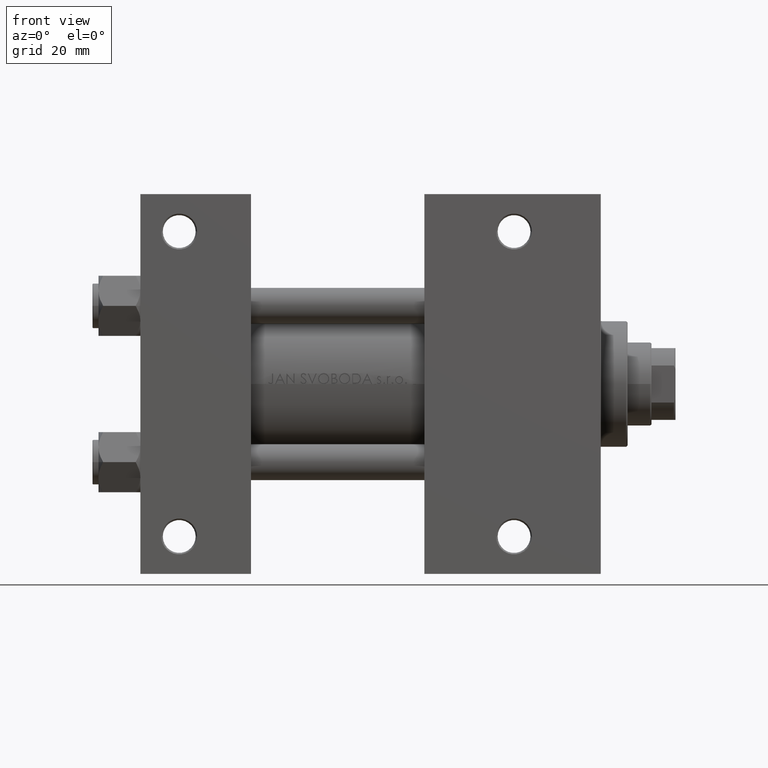
[diagram: clean part render]
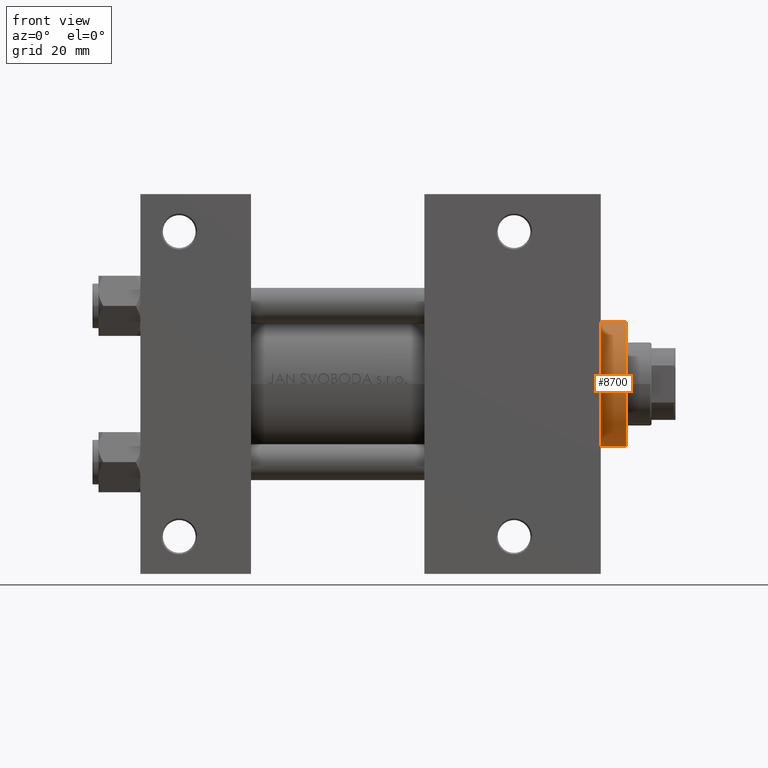
[diagram: same view with one face highlighted and labeled with its STEP entity id]
A machine part, front view. The second image highlights one B-rep face of the part: STEP entity #8700.
In plain terms, the highlighted cylindrical surface (partial cylindrical patch) has radius 21 mm, axis along (-1, -0, 0).
Its self-contained STEP definition (entity closure, byte-faithful):
#619 = CARTESIAN_POINT ( 'NONE',  ( -21.00000000000000000, 0.000000000000000000, 28.69999999999999929 ) ) ;
#1691 = ORIENTED_EDGE ( 'NONE', *, *, #35528, .T. ) ;
#4382 = CARTESIAN_POINT ( 'NONE',  ( -21.00000000000000000, 0.000000000000000000, 37.19999999999999574 ) ) ;
#8700 = ADVANCED_FACE ( 'NONE', ( #34113 ), #37884, .T. ) ;
#9112 = ORIENTED_EDGE ( 'NONE', *, *, #23527, .T. ) ;
#10573 = CARTESIAN_POINT ( 'NONE',  ( 0.000000000000000000, 0.000000000000000000, 37.19999999999999574 ) ) ;
#11362 = EDGE_CURVE ( 'NONE', #11639, #15455, #25380, .T. ) ;
#11639 = VERTEX_POINT ( 'NONE', #20819 ) ;
#13856 = CARTESIAN_POINT ( 'NONE',  ( 21.00000000000000000, 2.571758278209441661E-15, 37.69999999999999574 ) ) ;
#15455 = VERTEX_POINT ( 'NONE', #26664 ) ;
#15639 = VECTOR ( 'NONE', #43192, 1000.000000000000000 ) ;
#17623 = DIRECTION ( 'NONE',  ( -0.000000000000000000, -0.000000000000000000, -1.000000000000000000 ) ) ;
#17637 = CIRCLE ( 'NONE', #32023, 21.00000000000000000 ) ;
#17703 = ORIENTED_EDGE ( 'NONE', *, *, #11362, .F. ) ;
#20819 = CARTESIAN_POINT ( 'NONE',  ( 21.00000000000000000, 2.571758278209441661E-15, 37.19999999999999574 ) ) ;
#21047 = EDGE_LOOP ( 'NONE', ( #17703, #9112, #40881, #1691 ) ) ;
#21191 = VECTOR ( 'NONE', #17623, 1000.000000000000000 ) ;
#21833 = DIRECTION ( 'NONE',  ( 1.000000000000000000, 0.000000000000000000, 0.000000000000000000 ) ) ;
#23527 = EDGE_CURVE ( 'NONE', #11639, #38589, #17637, .T. ) ;
#23650 = CARTESIAN_POINT ( 'NONE',  ( -21.00000000000000000, 0.000000000000000000, 37.69999999999999574 ) ) ;
#25380 = LINE ( 'NONE', #13856, #21191 ) ;
#25609 = DIRECTION ( 'NONE',  ( -1.000000000000000000, 0.000000000000000000, 0.000000000000000000 ) ) ;
#26664 = CARTESIAN_POINT ( 'NONE',  ( 21.00000000000000000, 2.571758278209441661E-15, 28.69999999999999929 ) ) ;
#27254 = DIRECTION ( 'NONE',  ( 0.000000000000000000, 0.000000000000000000, 1.000000000000000000 ) ) ;
#27637 = AXIS2_PLACEMENT_3D ( 'NONE', #46053, #27254, #45799 ) ;
#29365 = DIRECTION ( 'NONE',  ( -0.000000000000000000, -0.000000000000000000, -1.000000000000000000 ) ) ;
#29921 = AXIS2_PLACEMENT_3D ( 'NONE', #49425, #29365, #25609 ) ;
#30755 = CIRCLE ( 'NONE', #27637, 21.00000000000000000 ) ;
#32023 = AXIS2_PLACEMENT_3D ( 'NONE', #10573, #40637, #21833 ) ;
#34113 = FACE_OUTER_BOUND ( 'NONE', #21047, .T. ) ;
#35528 = EDGE_CURVE ( 'NONE', #43355, #15455, #30755, .T. ) ;
#37884 = CYLINDRICAL_SURFACE ( 'NONE', #29921, 21.00000000000000000 ) ;
#37940 = EDGE_CURVE ( 'NONE', #38589, #43355, #42712, .T. ) ;
#38589 = VERTEX_POINT ( 'NONE', #4382 ) ;
#40637 = DIRECTION ( 'NONE',  ( 0.000000000000000000, 0.000000000000000000, -1.000000000000000000 ) ) ;
#40881 = ORIENTED_EDGE ( 'NONE', *, *, #37940, .T. ) ;
#42712 = LINE ( 'NONE', #23650, #15639 ) ;
#43192 = DIRECTION ( 'NONE',  ( -0.000000000000000000, -0.000000000000000000, -1.000000000000000000 ) ) ;
#43355 = VERTEX_POINT ( 'NONE', #619 ) ;
#45799 = DIRECTION ( 'NONE',  ( 1.000000000000000000, 0.000000000000000000, 0.000000000000000000 ) ) ;
#46053 = CARTESIAN_POINT ( 'NONE',  ( 0.000000000000000000, 0.000000000000000000, 28.69999999999999929 ) ) ;
#49425 = CARTESIAN_POINT ( 'NONE',  ( 0.000000000000000000, 0.000000000000000000, 37.69999999999999574 ) ) ;